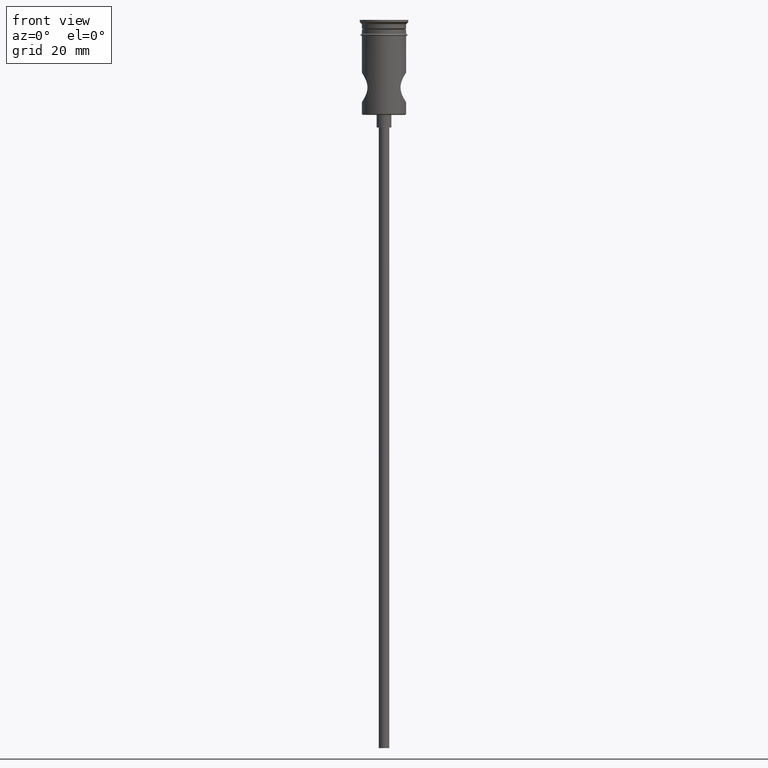
[diagram: clean part render]
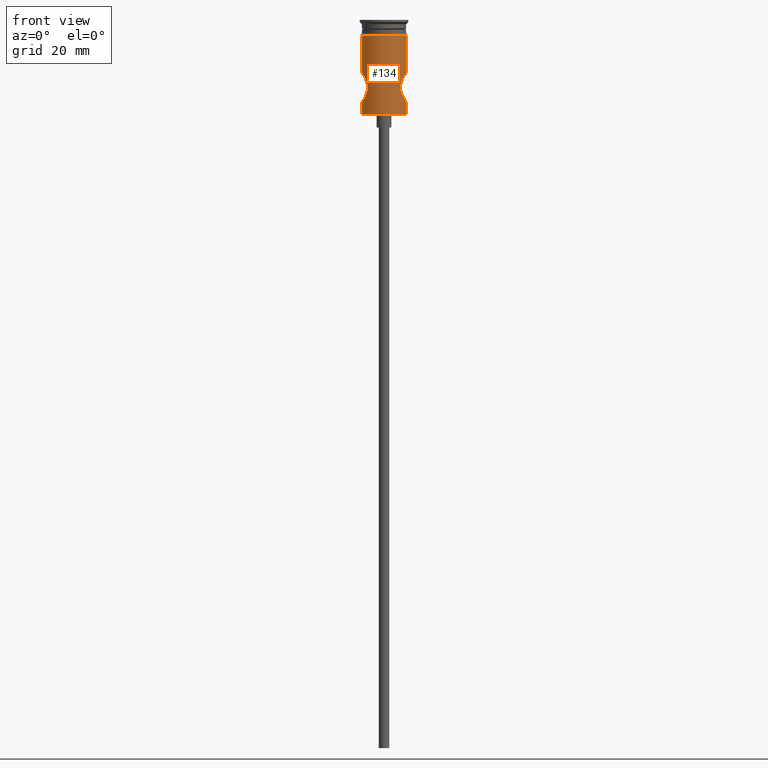
[diagram: same view with one face highlighted and labeled with its STEP entity id]
A machine part, front view. The second image highlights one B-rep face of the part: STEP entity #134.
In plain terms, the highlighted cylindrical surface (edge-blend (fillet) strip) has radius 5.25 mm, axis along (-0, -0, 1).
Its self-contained STEP definition (entity closure, byte-faithful):
#2 = DIRECTION ( 'NONE',  ( 1.000000000000000000, 0.000000000000000000, 0.000000000000000000 ) ) ;
#22 = CARTESIAN_POINT ( 'NONE',  ( -4.791879949463428545, -2.154107611278241574, -13.23235612182024212 ) ) ;
#31 = CARTESIAN_POINT ( 'NONE',  ( -4.291292931424322887, -3.028111643923960372, -14.23084841941946976 ) ) ;
#34 = CARTESIAN_POINT ( 'NONE',  ( 4.211358233975349030, -3.136775979440170392, -14.43100953861070757 ) ) ;
#36 = VERTEX_POINT ( 'NONE', #567 ) ;
#37 = CARTESIAN_POINT ( 'NONE',  ( -5.125279937689080967, -1.158394803269064743, -19.31071042783137059 ) ) ;
#41 = CARTESIAN_POINT ( 'NONE',  ( 5.249999999999997335, 0.000000000000000000, -19.50000000000000000 ) ) ;
#52 = DIRECTION ( 'NONE',  ( -0.000000000000000000, -0.000000000000000000, 1.000000000000000000 ) ) ;
#59 = CARTESIAN_POINT ( 'NONE',  ( 3.913265713256699474, -3.499835925500728528, -16.24147938307707051 ) ) ;
#91 = VERTEX_POINT ( 'NONE', #41 ) ;
#134 = ADVANCED_FACE ( 'NONE', ( #801 ), #1214, .T. ) ;
#160 = CARTESIAN_POINT ( 'NONE',  ( 4.941870577857391922, -1.783409467750110000, -12.98008101414071547 ) ) ;
#175 = VECTOR ( 'NONE', #1182, 1000.000000000000000 ) ;
#211 = VERTEX_POINT ( 'NONE', #962 ) ;
#237 = ORIENTED_EDGE ( 'NONE', *, *, #515, .F. ) ;
#240 = AXIS2_PLACEMENT_3D ( 'NONE', #1180, #435, #2 ) ;
#247 = ORIENTED_EDGE ( 'NONE', *, *, #1332, .F. ) ;
#249 = CARTESIAN_POINT ( 'NONE',  ( -3.956270316689133537, -3.451288398606817687, -16.59344471299514368 ) ) ;
#252 = CARTESIAN_POINT ( 'NONE',  ( -4.017161582871403347, -3.380647649991994186, -16.93567858667558923 ) ) ;
#255 = CARTESIAN_POINT ( 'NONE',  ( 5.249999999999999112, 0.000000000000000000, -3.799999999999998934 ) ) ;
#262 = CARTESIAN_POINT ( 'NONE',  ( 4.076244073135415036, -3.310471843351305843, -17.15838242263341229 ) ) ;
#271 = LINE ( 'NONE', #955, #748 ) ;
#281 = CARTESIAN_POINT ( 'NONE',  ( 5.010287030224574778, -1.583769054670559395, -12.87024185501964624 ) ) ;
#293 = LINE ( 'NONE', #946, #680 ) ;
#303 = CARTESIAN_POINT ( 'NONE',  ( -5.249999999999997335, 6.428491939192731130E-16, -12.50000000000000000 ) ) ;
#318 = EDGE_CURVE ( 'NONE', #740, #1273, #1168, .T. ) ;
#322 = ORIENTED_EDGE ( 'NONE', *, *, #896, .T. ) ;
#328 = CARTESIAN_POINT ( 'NONE',  ( -5.249999999999997335, 6.429395695523601195E-16, 0.000000000000000000 ) ) ;
#344 = VERTEX_POINT ( 'NONE', #767 ) ;
#349 = ORIENTED_EDGE ( 'NONE', *, *, #1440, .F. ) ;
#358 = CARTESIAN_POINT ( 'NONE',  ( -4.015700048634970543, -3.382383198169306660, -15.06996144822463179 ) ) ;
#371 = CARTESIAN_POINT ( 'NONE',  ( -5.249999999999997335, 6.428491939192731130E-16, -12.50000000000000000 ) ) ;
#374 = CARTESIAN_POINT ( 'NONE',  ( 5.171157607198457740, -0.9357787620484788738, -12.61922458594744434 ) ) ;
#376 = CARTESIAN_POINT ( 'NONE',  ( -5.125401452483049347, -1.158029921580444821, -12.68909474010616023 ) ) ;
#381 = CARTESIAN_POINT ( 'NONE',  ( 3.912973667625768925, -3.500162442579392241, -15.76330045747091191 ) ) ;
#389 = CARTESIAN_POINT ( 'NONE',  ( 4.455882725706746150, -2.780268144892072968, -13.86229586798407887 ) ) ;
#403 = DIRECTION ( 'NONE',  ( -1.000000000000000000, 0.000000000000000000, 0.000000000000000000 ) ) ;
#412 = DIRECTION ( 'NONE',  ( 1.000000000000000000, 0.000000000000000000, 0.000000000000000000 ) ) ;
#435 = DIRECTION ( 'NONE',  ( -0.000000000000000000, -0.000000000000000000, 1.000000000000000000 ) ) ;
#448 = AXIS2_PLACEMENT_3D ( 'NONE', #1040, #52, #403 ) ;
#455 = DIRECTION ( 'NONE',  ( -0.000000000000000000, -0.000000000000000000, 1.000000000000000000 ) ) ;
#456 = CARTESIAN_POINT ( 'NONE',  ( -4.073963173537559435, -3.313288510862783642, -14.84939764593512557 ) ) ;
#461 = CARTESIAN_POINT ( 'NONE',  ( -4.791726953342657858, -2.154678821938329047, -18.76742029390492661 ) ) ;
#476 = CARTESIAN_POINT ( 'NONE',  ( -4.542248346412463000, -2.638603940227049804, -13.68972905434602971 ) ) ;
#478 = CARTESIAN_POINT ( 'NONE',  ( 5.249999999999997335, 0.000000000000000000, -19.50000000000000000 ) ) ;
#480 = CARTESIAN_POINT ( 'NONE',  ( -3.934500147216332344, -3.476502778859750897, -15.53158113228982806 ) ) ;
#483 = CARTESIAN_POINT ( 'NONE',  ( 5.249999999999997335, 9.037561610381727207E-20, -12.50000000000000000 ) ) ;
#494 = CARTESIAN_POINT ( 'NONE',  ( -5.250000000000000000, -0.2359691128690696027, -12.50000000000000711 ) ) ;
#499 = CARTESIAN_POINT ( 'NONE',  ( 5.249999999999995559, -0.2391654009334196473, -19.49999999999999645 ) ) ;
#501 = VERTEX_POINT ( 'NONE', #371 ) ;
#506 = CARTESIAN_POINT ( 'NONE',  ( 5.124746031636080446, -1.160605218168686559, -19.30988035096184774 ) ) ;
#515 = EDGE_CURVE ( 'NONE', #344, #501, #593, .T. ) ;
#547 = LINE ( 'NONE', #328, #175 ) ;
#567 = CARTESIAN_POINT ( 'NONE',  ( -5.249999999999997335, 6.429395695523601195E-16, -22.29999999999999716 ) ) ;
#569 = CARTESIAN_POINT ( 'NONE',  ( -4.542868706571997706, -2.637461925376886285, -18.31144200051445381 ) ) ;
#570 = EDGE_CURVE ( 'NONE', #36, #344, #271, .T. ) ;
#577 = ORIENTED_EDGE ( 'NONE', *, *, #889, .T. ) ;
#578 = CARTESIAN_POINT ( 'NONE',  ( -3.912935558424083915, -3.500205050033671217, -15.76559328519910252 ) ) ;
#583 = CARTESIAN_POINT ( 'NONE',  ( -4.456129832326547024, -2.779831882631588424, -18.13814034968121192 ) ) ;
#593 = B_SPLINE_CURVE_WITH_KNOTS ( 'NONE', 3,
 ( #996, #803, #814, #1335, #37, #1228, #1017, #461, #900, #569, #583, #701, #795, #1109, #252, #249, #1001, #1127, #1342, #578, #480, #358, #456, #689, #31, #1362, #476, #1005, #22, #807, #1122, #376, #1245, #738, #494, #303 ),
 .UNSPECIFIED., .F., .F.,
 ( 4, 2, 2, 2, 2, 2, 2, 2, 2, 2, 2, 2, 2, 2, 2, 2, 2, 4 ),
 ( 0.000000000000000000, 0.0007069940335760027238, 0.001413988067152005448, 0.002120982100728007955, 0.002827976134304010895, 0.003534970167880013402, 0.004241964201456015909, 0.004948958235032018850, 0.005302455251820025091, 0.005655952268608031332, 0.006362946302184043813, 0.007069940335760057162, 0.007776934369336069644, 0.008483928402912082126, 0.009190922436488094607, 0.009897916470064108824, 0.01060491050364011957, 0.01131190453721613379 ),
 .UNSPECIFIED. ) ;
#610 = CARTESIAN_POINT ( 'NONE',  ( 5.233651169580556761, -0.4745025501927485623, -19.47560998813100142 ) ) ;
#615 = CARTESIAN_POINT ( 'NONE',  ( 0.000000000000000000, 0.000000000000000000, 0.000000000000000000 ) ) ;
#616 = CARTESIAN_POINT ( 'NONE',  ( 5.249999999999997335, -0.2356573567156187154, -12.50000000000000178 ) ) ;
#675 = EDGE_CURVE ( 'NONE', #211, #91, #1108, .T. ) ;
#680 = VECTOR ( 'NONE', #819, 1000.000000000000000 ) ;
#689 = CARTESIAN_POINT ( 'NONE',  ( -4.211626988821404183, -3.136439829262894108, -14.43012365747861736 ) ) ;
#701 = CARTESIAN_POINT ( 'NONE',  ( -4.291847880858497000, -3.027309060174747213, -17.77045454751424103 ) ) ;
#714 = CARTESIAN_POINT ( 'NONE',  ( 4.793649463825864210, -2.150235679629801222, -18.77070743917914442 ) ) ;
#726 = CARTESIAN_POINT ( 'NONE',  ( 4.708760133973805218, -2.328399268865064098, -13.37747860927764343 ) ) ;
#735 = CARTESIAN_POINT ( 'NONE',  ( 3.935709764125989718, -3.475135228226967854, -16.47752279465179015 ) ) ;
#738 = CARTESIAN_POINT ( 'NONE',  ( -5.233763254461207381, -0.4740647931550001082, -12.52421804113796000 ) ) ;
#740 = VERTEX_POINT ( 'NONE', #1238 ) ;
#748 = VECTOR ( 'NONE', #1382, 1000.000000000000000 ) ;
#767 = CARTESIAN_POINT ( 'NONE',  ( -5.249999999999997335, 0.000000000000000000, -19.50000000000000000 ) ) ;
#795 = CARTESIAN_POINT ( 'NONE',  ( -4.213805231981512023, -3.133507475994600444, -17.57552681985903220 ) ) ;
#801 = FACE_OUTER_BOUND ( 'NONE', #1086, .T. ) ;
#802 = B_SPLINE_CURVE_WITH_KNOTS ( 'NONE', 3,
 ( #483, #616, #1014, #374, #1260, #281, #160, #1372, #726, #1148, #389, #937, #34, #836, #1365, #1242, #381, #59, #735, #1387, #262, #818, #823, #1247, #714, #1135, #1128, #506, #1379, #610, #499, #478 ),
 .UNSPECIFIED., .F., .F.,
 ( 4, 2, 2, 2, 2, 2, 2, 2, 2, 2, 2, 2, 2, 2, 2, 4 ),
 ( 0.01131190453721613205, 0.01201796450896624319, 0.01272402448071635259, 0.01343008445246646372, 0.01413614442421657486, 0.01484220439596668599, 0.01554826436771679712, 0.01625432433946690652, 0.01696038431121701939, 0.01766644428296712879, 0.01837250425471723819, 0.01978462419821747087, 0.02049068416996758721, 0.02119674414171770355, 0.02190280411346781642, 0.02260886408521793275 ),
 .UNSPECIFIED. ) ;
#803 = CARTESIAN_POINT ( 'NONE',  ( -5.249999999999997335, -0.2394817979535391328, -19.49999999999999645 ) ) ;
#807 = CARTESIAN_POINT ( 'NONE',  ( -4.941524827079388338, -1.784271681777893637, -12.98066119771261739 ) ) ;
#814 = CARTESIAN_POINT ( 'NONE',  ( -5.233705508463599720, -0.4736751586742008469, -19.47569040078916203 ) ) ;
#818 = CARTESIAN_POINT ( 'NONE',  ( 4.282019573606241636, -3.045778496349780262, -17.78256220141813060 ) ) ;
#819 = DIRECTION ( 'NONE',  ( -0.000000000000000000, -0.000000000000000000, 1.000000000000000000 ) ) ;
#823 = CARTESIAN_POINT ( 'NONE',  ( 4.459834455484655180, -2.792467526987480575, -18.15591097312378110 ) ) ;
#836 = CARTESIAN_POINT ( 'NONE',  ( 4.074555398726830369, -3.312536795685569135, -14.84752675069977990 ) ) ;
#889 = EDGE_CURVE ( 'NONE', #1159, #1273, #293, .T. ) ;
#896 = EDGE_CURVE ( 'NONE', #36, #211, #1027, .T. ) ;
#900 = CARTESIAN_POINT ( 'NONE',  ( -4.710272676435011796, -2.325337138264823800, -18.62521936663612010 ) ) ;
#937 = CARTESIAN_POINT ( 'NONE',  ( 4.290711569970872219, -3.028956263479463562, -14.23220649750371614 ) ) ;
#946 = CARTESIAN_POINT ( 'NONE',  ( 5.249999999999997335, 0.000000000000000000, 0.000000000000000000 ) ) ;
#955 = CARTESIAN_POINT ( 'NONE',  ( -5.249999999999997335, 6.429395695523601195E-16, 0.000000000000000000 ) ) ;
#956 = DIRECTION ( 'NONE',  ( -0.000000000000000000, -0.000000000000000000, 1.000000000000000000 ) ) ;
#962 = CARTESIAN_POINT ( 'NONE',  ( 5.249999999999997335, 0.000000000000000000, -22.29999999999999716 ) ) ;
#996 = CARTESIAN_POINT ( 'NONE',  ( -5.249999999999997335, 0.000000000000000000, -19.50000000000000000 ) ) ;
#1001 = CARTESIAN_POINT ( 'NONE',  ( -3.940413688538168646, -3.469280093805878540, -16.47760714426993189 ) ) ;
#1005 = CARTESIAN_POINT ( 'NONE',  ( -4.710700327440311419, -2.324554412983744989, -13.37397079666040334 ) ) ;
#1014 = CARTESIAN_POINT ( 'NONE',  ( 5.233633430427243383, -0.4750094798020726428, -12.52441511600401824 ) ) ;
#1017 = CARTESIAN_POINT ( 'NONE',  ( -4.943096194098154150, -1.780193258326856931, -19.02194769508573202 ) ) ;
#1027 = CIRCLE ( 'NONE', #448, 5.249999999999997335 ) ;
#1040 = CARTESIAN_POINT ( 'NONE',  ( 0.000000000000000000, 0.000000000000000000, -22.29999999999999716 ) ) ;
#1086 = EDGE_LOOP ( 'NONE', ( #1313, #322, #1283, #247, #577, #1386, #349, #237 ) ) ;
#1108 = LINE ( 'NONE', #1112, #1346 ) ;
#1109 = CARTESIAN_POINT ( 'NONE',  ( -4.076450620869312758, -3.310222646711699301, -17.15912893648900450 ) ) ;
#1112 = CARTESIAN_POINT ( 'NONE',  ( 5.249999999999997335, 0.000000000000000000, 0.000000000000000000 ) ) ;
#1117 = AXIS2_PLACEMENT_3D ( 'NONE', #615, #956, #412 ) ;
#1118 = CARTESIAN_POINT ( 'NONE',  ( 5.249999999999997335, 9.037561610381727207E-20, -12.50000000000000000 ) ) ;
#1122 = CARTESIAN_POINT ( 'NONE',  ( -5.010722034647407064, -1.582225660229890307, -12.86955452061876848 ) ) ;
#1127 = CARTESIAN_POINT ( 'NONE',  ( -3.918847831090380041, -3.493622200933426569, -16.24210921229989424 ) ) ;
#1128 = CARTESIAN_POINT ( 'NONE',  ( 5.010881149324092121, -1.581485525877044829, -19.13068937161849803 ) ) ;
#1135 = CARTESIAN_POINT ( 'NONE',  ( 4.943496079229932505, -1.778885936374027255, -19.02256480771651681 ) ) ;
#1148 = CARTESIAN_POINT ( 'NONE',  ( 4.541142868155102263, -2.640433033719364886, -13.69193262782664000 ) ) ;
#1159 = VERTEX_POINT ( 'NONE', #1118 ) ;
#1168 = CIRCLE ( 'NONE', #240, 5.249999999999999112 ) ;
#1180 = CARTESIAN_POINT ( 'NONE',  ( 0.000000000000000000, 0.000000000000000000, -3.799999999999998934 ) ) ;
#1182 = DIRECTION ( 'NONE',  ( -0.000000000000000000, -0.000000000000000000, 1.000000000000000000 ) ) ;
#1214 = CYLINDRICAL_SURFACE ( 'NONE', #1117, 5.249999999999997335 ) ;
#1228 = CARTESIAN_POINT ( 'NONE',  ( -5.011119671772967799, -1.580839205956426685, -19.13107480940701421 ) ) ;
#1238 = CARTESIAN_POINT ( 'NONE',  ( -5.249999999999998224, 6.429395695523602181E-16, -3.799999999999998934 ) ) ;
#1242 = CARTESIAN_POINT ( 'NONE',  ( 3.934854629125831060, -3.476098995561848870, -15.52910205287917300 ) ) ;
#1245 = CARTESIAN_POINT ( 'NONE',  ( -5.171017401262786528, -0.9368000147816665235, -12.61943741575976219 ) ) ;
#1247 = CARTESIAN_POINT ( 'NONE',  ( 4.710874926819404784, -2.324119615847294984, -18.62629487387890848 ) ) ;
#1260 = CARTESIAN_POINT ( 'NONE',  ( 5.125624017123612042, -1.157272214673059407, -12.68874170657910661 ) ) ;
#1273 = VERTEX_POINT ( 'NONE', #255 ) ;
#1283 = ORIENTED_EDGE ( 'NONE', *, *, #675, .T. ) ;
#1313 = ORIENTED_EDGE ( 'NONE', *, *, #570, .F. ) ;
#1332 = EDGE_CURVE ( 'NONE', #1159, #91, #802, .T. ) ;
#1335 = CARTESIAN_POINT ( 'NONE',  ( -5.171738567981855716, -0.9322884155218372770, -19.38166086832590551 ) ) ;
#1342 = CARTESIAN_POINT ( 'NONE',  ( -3.913212435243750065, -3.499895492128140884, -16.12176624835053573 ) ) ;
#1346 = VECTOR ( 'NONE', #455, 1000.000000000000000 ) ;
#1362 = CARTESIAN_POINT ( 'NONE',  ( -4.455965565348066093, -2.780112593366053542, -13.86216665491766697 ) ) ;
#1365 = CARTESIAN_POINT ( 'NONE',  ( 4.015860184454198567, -3.382190437898871416, -15.06951789628485727 ) ) ;
#1372 = CARTESIAN_POINT ( 'NONE',  ( 4.791591092289863241, -2.154829214170282725, -13.23284061381126975 ) ) ;
#1379 = CARTESIAN_POINT ( 'NONE',  ( 5.171446349193719705, -0.9340234967078276940, -19.38121539794984827 ) ) ;
#1382 = DIRECTION ( 'NONE',  ( -0.000000000000000000, -0.000000000000000000, 1.000000000000000000 ) ) ;
#1386 = ORIENTED_EDGE ( 'NONE', *, *, #318, .F. ) ;
#1387 = CARTESIAN_POINT ( 'NONE',  ( 4.017013811892041986, -3.380824786493573431, -16.93520940805085928 ) ) ;
#1440 = EDGE_CURVE ( 'NONE', #501, #740, #547, .T. ) ;